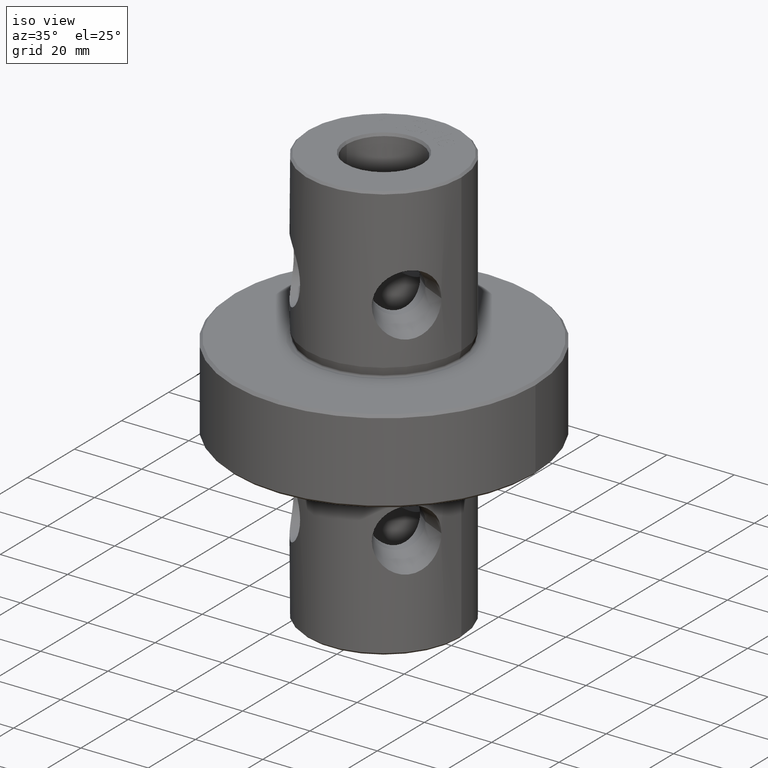
[diagram: clean part render]
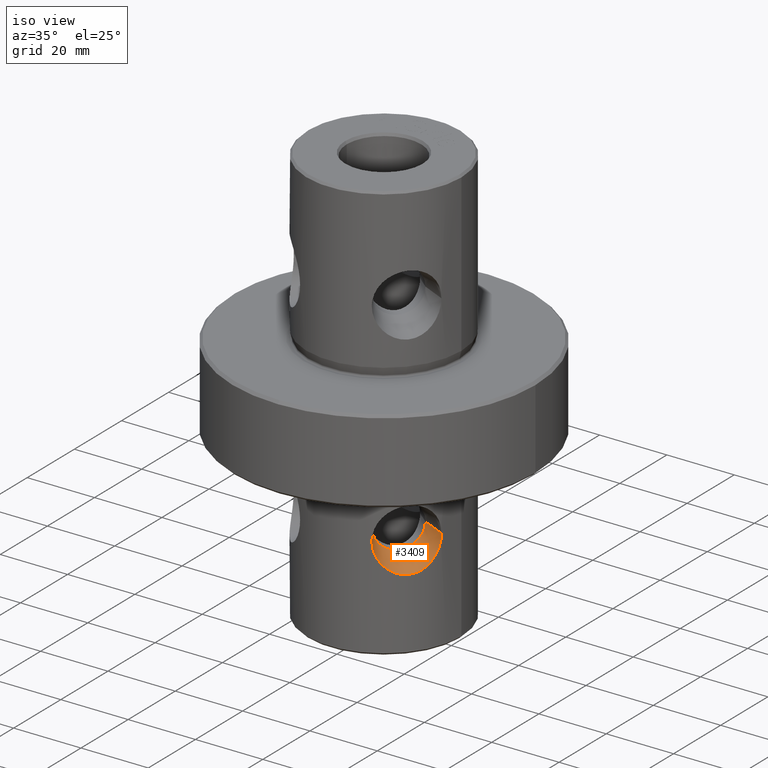
[diagram: same view with one face highlighted and labeled with its STEP entity id]
A machine part, iso view. The second image highlights one B-rep face of the part: STEP entity #3409.
In plain terms, the highlighted conical surface has half-angle 15 deg.
Its self-contained STEP definition (entity closure, byte-faithful):
#1353=VERTEX_POINT('NONE',#3732);
#1555=VERTEX_POINT('NONE',#3951);
#1801=EDGE_CURVE('NONE',#3321,#2281,#4215,.T.);
#2281=VERTEX_POINT('NONE',#4747);
#3119=EDGE_CURVE('NONE',#1555,#1353,#5689,.T.);
#3185=EDGE_CURVE('NONE',#2281,#1353,#5764,.T.);
#3321=VERTEX_POINT('NONE',#5917);
#3409=ADVANCED_FACE('NONE',(#6011),#6012,.F.);
#3435=EDGE_CURVE('NONE',#1555,#3321,#6039,.T.);
#3732=CARTESIAN_POINT('',(21.9248945438115,-6.94974814239672,-93.75));
#3951=CARTESIAN_POINT('',(14.8541318378612,-3.65259734361528,-93.75));
#4215=LINE('',#9046,#9047);
#4747=CARTESIAN_POINT('',(10.6513838351866,-20.3849950305494,-93.75));
#5689=LINE('',#14330,#14331);
#5764=B_SPLINE_CURVE_WITH_KNOTS('',3,(#14563,#14564,#14565,#14566,#14567,#14568,#14569,#14570,#14571,#14572,#14573,#14574,#14575,#14576,#14577,#14578,#14579,#14580,#14581,#14582,#14583,#14584,#14585,#14586,#14587,#14588,#14589,#14590,#14591,#14592,#14593,#14594,#14595,#14596,#14597,#14598,#14599,#14600,#14601,#14602,#14603,#14604,#14605,#14606),.UNSPECIFIED.,.F.,.F.,(4,2,2,2,2,2,2,2,2,2,2,2,2,2,2,2,2,2,2,2,2,4),(0.00582249101599475,0.00758842714864577,0.00935436328129678,0.0102373313476223,0.0111202994139478,0.0128862355465988,0.0146521716792498,0.0155351397455753,0.0164181078119008,0.0181840439445518,0.0199499800772028,0.0217159162098538,0.0234818523425048,0.0252477884751559,0.0270137246078069,0.0278966926741324,0.0287796607404579,0.0296626288067834,0.030545596873109,0.03231153300576,0.0331945010720855,0.0340774691384109),.UNSPECIFIED.);
#5917=CARTESIAN_POINT('',(6.17649910709282,-13.9941973257214,-93.75));
#6011=FACE_OUTER_BOUND('',#15394,.T.);
#6012=CONICAL_SURFACE('',#15395,6.75,0.26179938779915);
#6039=CIRCLE('',#15431,6.75);
#9046=CARTESIAN_POINT('',(6.17649910709282,-13.9941973257214,-93.75));
#9047=VECTOR('',#16310,1000.0);
#14330=CARTESIAN_POINT('',(14.8541318378612,-3.65259734361528,-93.75));
#14331=VECTOR('',#17693,1000.0);
#14563=CARTESIAN_POINT('',(10.6513838351866,-20.3849950305494,-93.75));
#14564=CARTESIAN_POINT('',(10.6513838351866,-20.3849950305494,-94.3424302492195));
#14565=CARTESIAN_POINT('',(10.7046614533567,-20.3574022814185,-94.9445207323126));
#14566=CARTESIAN_POINT('',(10.9105796122972,-20.2477864716666,-96.1082341350945));
#14567=CARTESIAN_POINT('',(11.0622585022081,-20.1662583265641,-96.6746180936553));
#14568=CARTESIAN_POINT('',(11.359187512644,-19.9995435840031,-97.5012997569281));
#14569=CARTESIAN_POINT('',(11.4703123814805,-19.9361806335004,-97.7739090935432));
#14570=CARTESIAN_POINT('',(11.710701937952,-19.7959294932253,-98.30066916443));
#14571=CARTESIAN_POINT('',(11.8403266504619,-19.7188476662026,-98.556073712233));
#14572=CARTESIAN_POINT('',(12.2555615261672,-19.4655173465411,-99.2990401364312));
#14573=CARTESIAN_POINT('',(12.5678474297455,-19.267119890047,-99.7642983953448));
#14574=CARTESIAN_POINT('',(13.2556626484224,-18.8005347164921,-100.628288720326));
#14575=CARTESIAN_POINT('',(13.6210079681561,-18.5391696543574,-101.014538525433));
#14576=CARTESIAN_POINT('',(14.1949771433211,-18.0986405922101,-101.526749107538));
#14577=CARTESIAN_POINT('',(14.3906737649783,-17.9436708954218,-101.686202485333));
#14578=CARTESIAN_POINT('',(14.7903134935294,-17.6157158065281,-101.981644774941));
#14579=CARTESIAN_POINT('',(14.9954083937046,-17.4416676105185,-102.118200495011));
#14580=CARTESIAN_POINT('',(15.6080683550629,-16.902200150953,-102.481939826288));
#14581=CARTESIAN_POINT('',(16.0161247520544,-16.5172262204009,-102.666659887209));
#14582=CARTESIAN_POINT('',(16.8266504680969,-15.6907249072107,-102.91844069158));
#14583=CARTESIAN_POINT('',(17.2327253469743,-15.244167613344,-102.984190658802));
#14584=CARTESIAN_POINT('',(17.9951875490013,-14.3361324695415,-102.985311160027));
#14585=CARTESIAN_POINT('',(18.3564800678489,-13.8702645549063,-102.923293880285));
#14586=CARTESIAN_POINT('',(19.0401369760376,-12.9157958809417,-102.67113346303));
#14587=CARTESIAN_POINT('',(19.3508584863595,-12.4434296427609,-102.485092042858));
#14588=CARTESIAN_POINT('',(19.9163490902059,-11.5166707146861,-102.002999093187));
#14589=CARTESIAN_POINT('',(20.1731909181708,-11.0579320712105,-101.702966968302));
#14590=CARTESIAN_POINT('',(20.6216527525724,-10.1972021292508,-101.016961466825));
#14591=CARTESIAN_POINT('',(20.816019834769,-9.79110927977541,-100.629774298553));
#14592=CARTESIAN_POINT('',(21.0709668435739,-9.22266132683567,-99.9825205852573));
#14593=CARTESIAN_POINT('',(21.1491818209756,-9.04137132604292,-99.7569863639229));
#14594=CARTESIAN_POINT('',(21.2920111470047,-8.699686687916,-99.2920829392851));
#14595=CARTESIAN_POINT('',(21.3569357384845,-8.53859621808719,-99.0519310952766));
#14596=CARTESIAN_POINT('',(21.4752825219063,-8.23641731079698,-98.5562849523119));
#14597=CARTESIAN_POINT('',(21.5287024826833,-8.09532792484615,-98.3007906883533));
#14598=CARTESIAN_POINT('',(21.6250814962666,-7.83423353484656,-97.7740445044034));
#14599=CARTESIAN_POINT('',(21.6682037592907,-7.71374429661443,-97.50134914223));
#14600=CARTESIAN_POINT('',(21.7809139417854,-7.39211801659788,-96.6739518737954));
#14601=CARTESIAN_POINT('',(21.8347944302286,-7.22878395991261,-96.1077845132198));
#14602=CARTESIAN_POINT('',(21.8888622460157,-7.06265537261349,-95.2365518754621));
#14603=CARTESIAN_POINT('',(21.9023637532852,-7.02049466234318,-94.9424546140615));
#14604=CARTESIAN_POINT('',(21.9204340512599,-6.96386776795584,-94.3465806476545));
#14605=CARTESIAN_POINT('',(21.9248945438114,-6.94974814239672,-94.0469916128492));
#14606=CARTESIAN_POINT('',(21.9248945438115,-6.94974814239672,-93.75));
#15394=EDGE_LOOP('',(#17978,#17979,#17980,#17981));
#15395=AXIS2_PLACEMENT_3D('',#17982,#17983,#17984);
#15431=AXIS2_PLACEMENT_3D('',#17997,#17998,#17999);
#16310=DIRECTION('',(0.573576436351039,-0.819152044288997,-0.0));
#17693=DIRECTION('',(0.906307787036647,-0.422618261740706,-3.16951447122788E-017));
#17978=ORIENTED_EDGE('',*,*,#3119,.F.);
#17979=ORIENTED_EDGE('',*,*,#3435,.T.);
#17980=ORIENTED_EDGE('',*,*,#1801,.T.);
#17981=ORIENTED_EDGE('',*,*,#3185,.T.);
#17982=CARTESIAN_POINT('',(10.515315472477,-8.82339733466835,-93.75));
#17983=DIRECTION('',(0.766044443118973,-0.642787609686546,-0.0));
#17984=DIRECTION('',(-0.642787609686546,-0.766044443118973,0.0));
#17997=CARTESIAN_POINT('',(10.515315472477,-8.82339733466835,-93.75));
#17998=DIRECTION('',(-0.766044443118973,0.642787609686546,0.0));
#17999=DIRECTION('',(-0.642787609686546,-0.766044443118973,0.0));